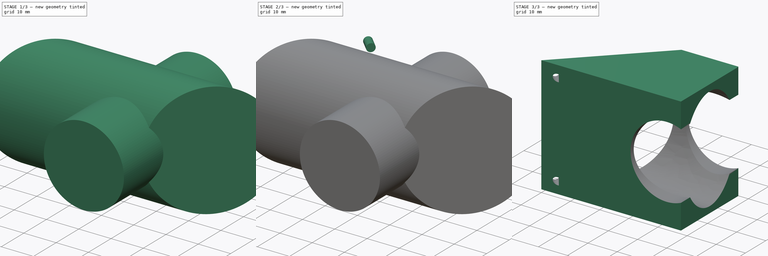
[diagram: build sequence overview — one tinted view per stage of 3, left to right]
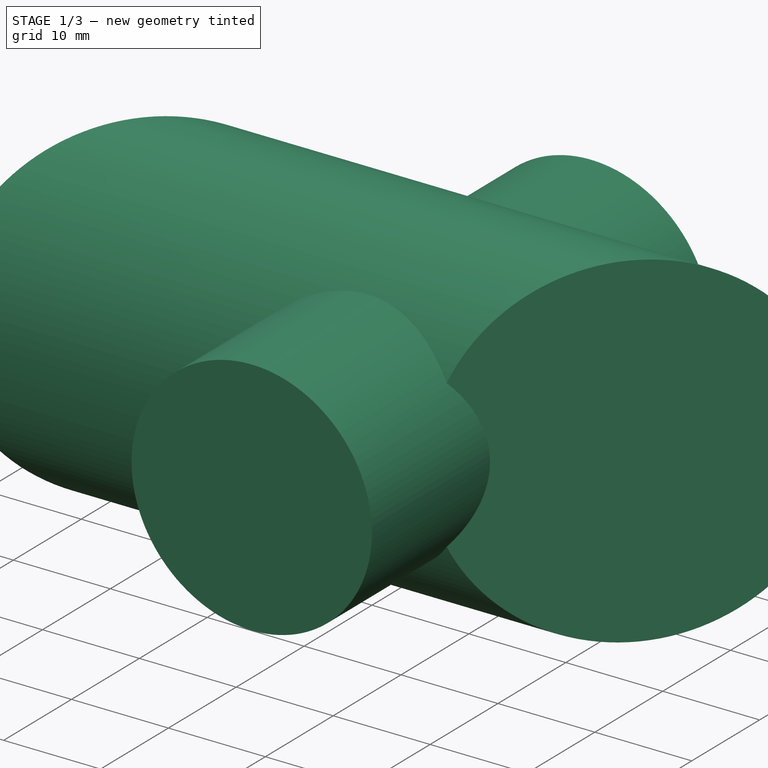
[diagram: stage 1 of 3 — iso view after this stage's code; geometry added in this stage tinted green]
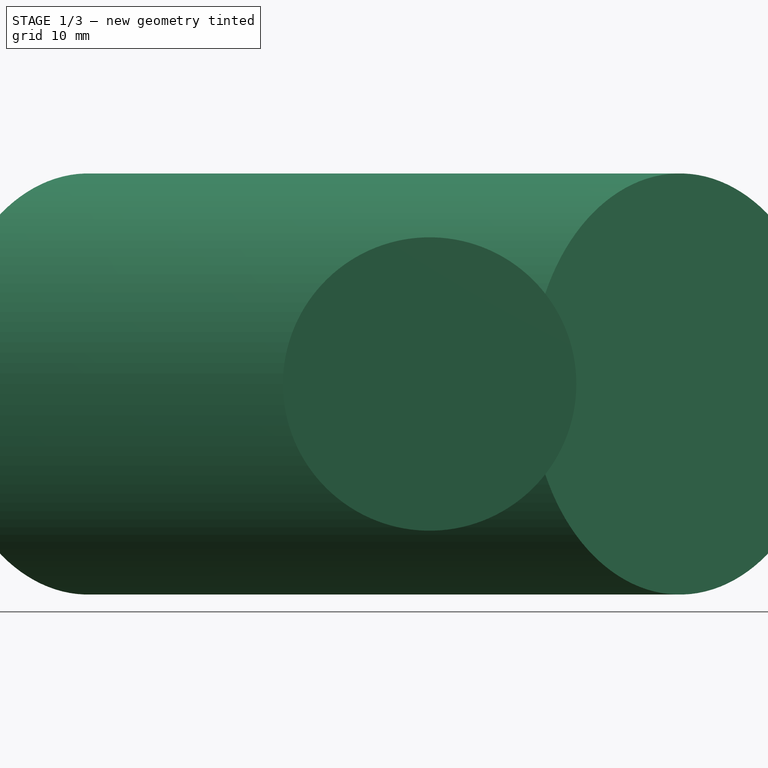
[diagram: stage 1 of 3 — front view after this stage's code; geometry added in this stage tinted green]
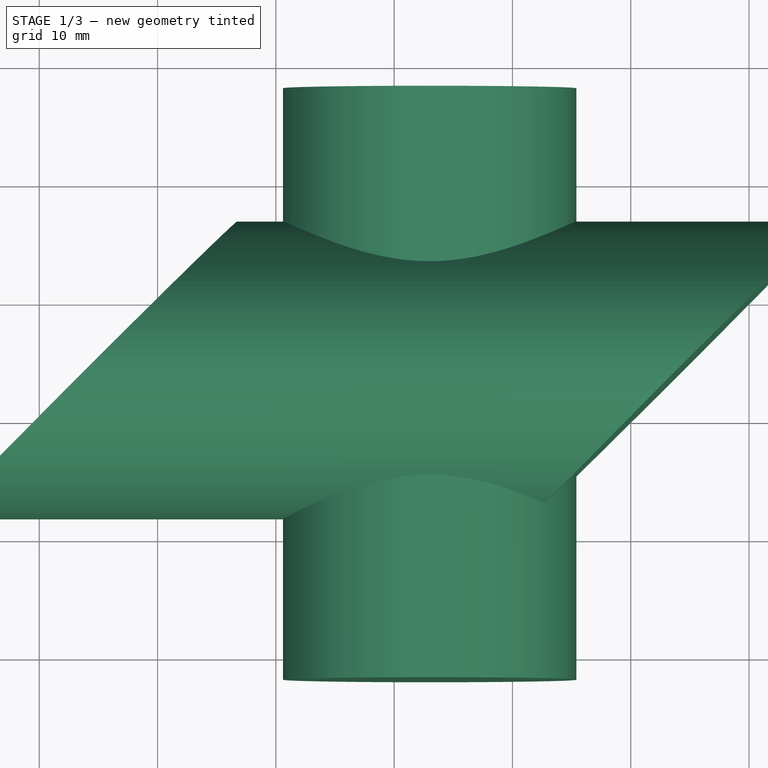
[diagram: stage 1 of 3 — top view after this stage's code; geometry added in this stage tinted green]
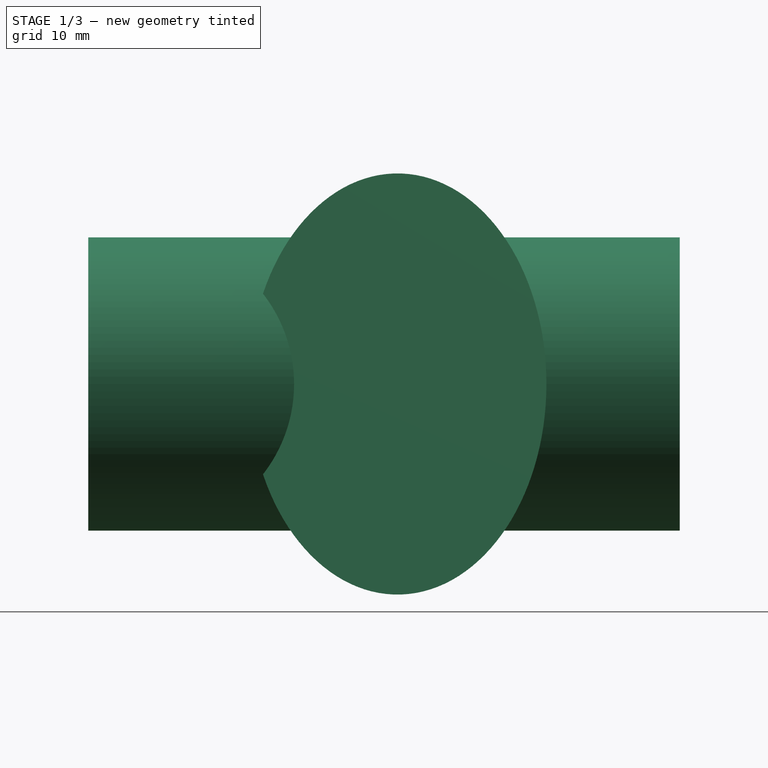
[diagram: stage 1 of 3 — right view after this stage's code; geometry added in this stage tinted green]
FCSTD DOCUMENT  (FreeCAD 0.14R3702 (Git))
Label: uchwyt-wentylator
License: CC-BY 3.0
LicenseURL: http://creativecommons.org/licenses/by/3.0/
objects: Part::Extrusion×4, Part::Cut×3, Sketcher::SketchObject×2, Part::Feature×1, Part::Cylinder×1
note: 11 computed .brp shape members not serialized (recipe doc carries the construction recipe); baked Part::Feature solids carry a one-line shape summary decoded from their .brp

FEATURE [Part::Extrusion] Extrude
  Base = -> Wire
  Dir = (0,0,40)
  Solid = true
FEATURE [Sketcher::SketchObject] Sketch
  Placement = pos=(0,0,0) rot=(-0.281085,0.678598,0.678598;3.68962rad)
  Support = -> Extrude [Face3]
  sketch-geometry (1):
    g0: Circle CenterX=-20 CenterY=20 CenterZ=0 NormalX=0 NormalY=0 NormalZ=1 Radius=17.8
  constraints (3):
    c: DistanceX(g-1,g0) = -20
    c: DistanceY(g-1,g0) = 20
    c: Radius(g0) = 17.8
FEATURE [Part::Extrusion] Extrude003
  Base = -> Sketch
  Dir = (50,0,0)
  Solid = true
FEATURE [Part::Cylinder] Cylinder
  Angle = 360
  Height = 50
  Placement = pos=(43,38,20) rot=(1,0,0;1.5708rad)
  Radius = 12.4
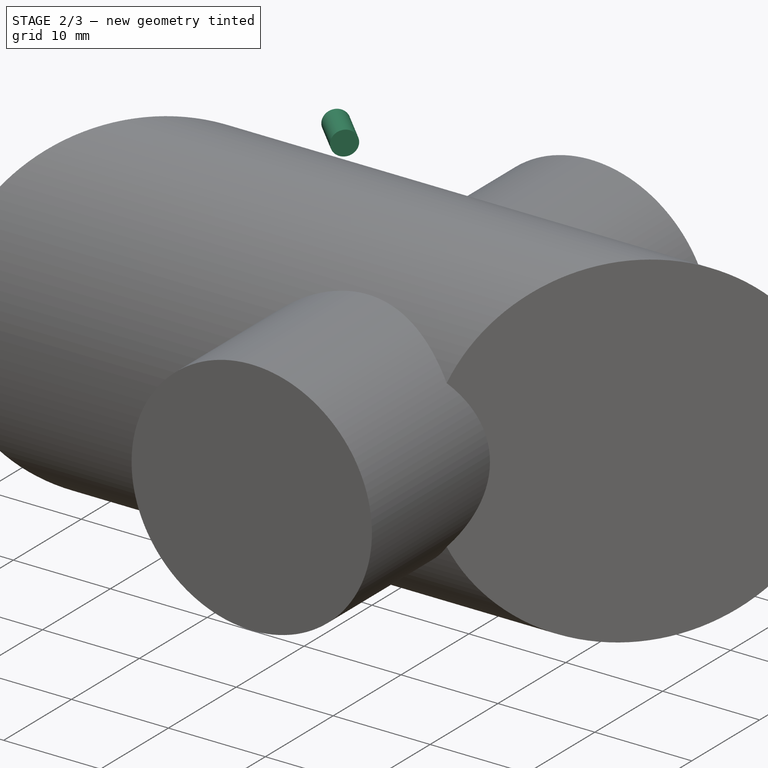
[diagram: stage 2 of 3 — iso view after this stage's code; geometry added in this stage tinted green]
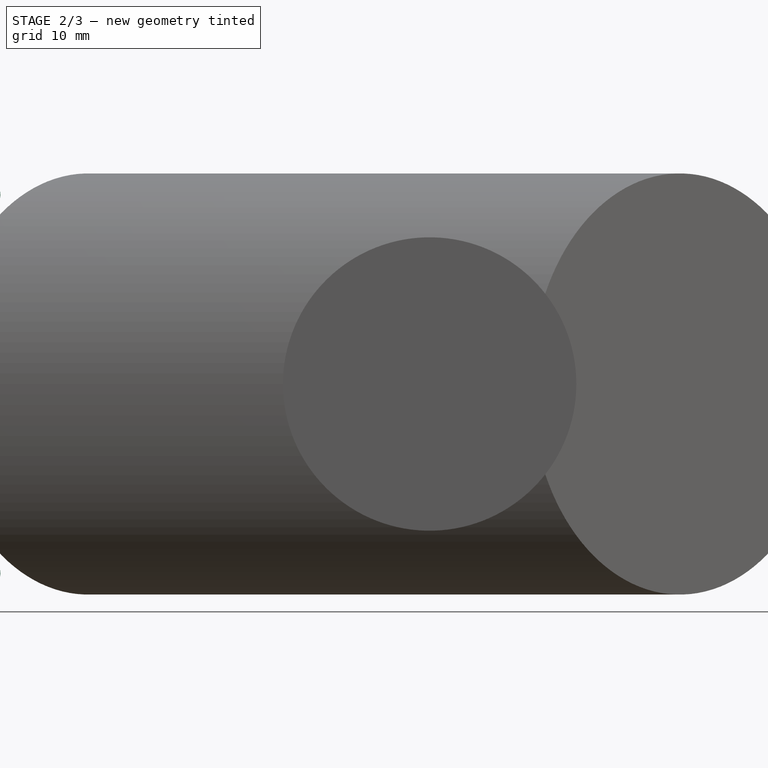
[diagram: stage 2 of 3 — front view after this stage's code; geometry added in this stage tinted green]
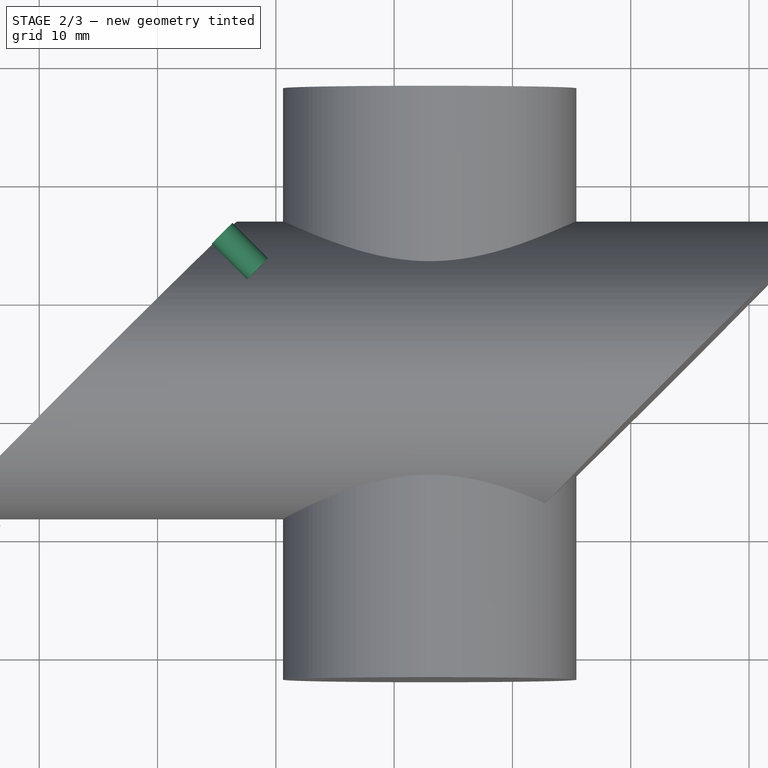
[diagram: stage 2 of 3 — top view after this stage's code; geometry added in this stage tinted green]
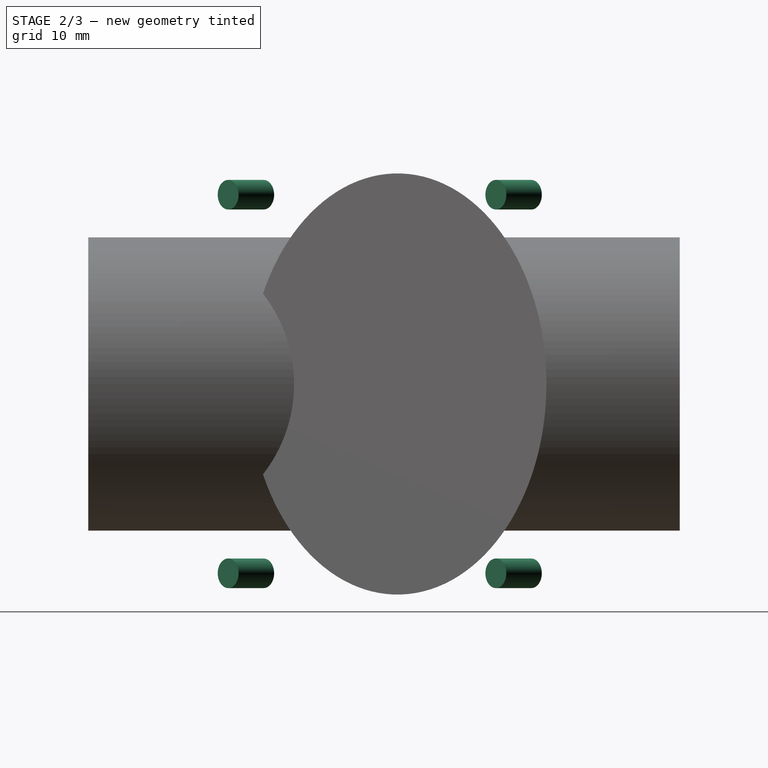
[diagram: stage 2 of 3 — right view after this stage's code; geometry added in this stage tinted green]
FEATURE [Part::Feature] Wire
  shape: bbox 47.89 x 28.28 x 2e-07 mm, 0 faces, 0 solids (baked)
FEATURE [Part::Extrusion] Extrude001
  Base = -> Wire
  Dir = (0,0,40)
  Solid = true
FEATURE [Sketcher::SketchObject] Sketch001
  Placement = pos=(0,0,0) rot=(-0.281085,0.678598,0.678598;3.68962rad)
  Support = -> Extrude001 [Face3]
  sketch-geometry (4):
    g0: Circle CenterX=-36 CenterY=36 CenterZ=0 NormalX=0 NormalY=0 NormalZ=1 Radius=1.25
    g1: Circle CenterX=-4 CenterY=36 CenterZ=0 NormalX=0 NormalY=0 NormalZ=1 Radius=1.25
    g2: Circle CenterX=-4 CenterY=4 CenterZ=0 NormalX=0 NormalY=0 NormalZ=1 Radius=1.25
    g3: Circle CenterX=-36 CenterY=4 CenterZ=0 NormalX=0 NormalY=0 NormalZ=1 Radius=1.25
  constraints (12):
    c: Radius(g0) = 1.25
    c: DistanceY(g0) = 36
    c: DistanceX(g-1,g0) = -36
    c: DistanceX(g0,g1) = 32
    c: DistanceY(g-1,g1) = 36
    c: Radius(g1) = 1.25
    c: DistanceX(g-1,g2) = -4
    c: Radius(g2) = 1.25
    c: DistanceY(g-1,g2) = 4
    c: Radius(g3) = 1.25
    c: DistanceX(g3) = -36
    c: DistanceY(g-1,g3) = 4
FEATURE [Part::Extrusion] Extrude002
  Base = -> Sketch001
  Dir = (3,-3,0)
  Solid = true
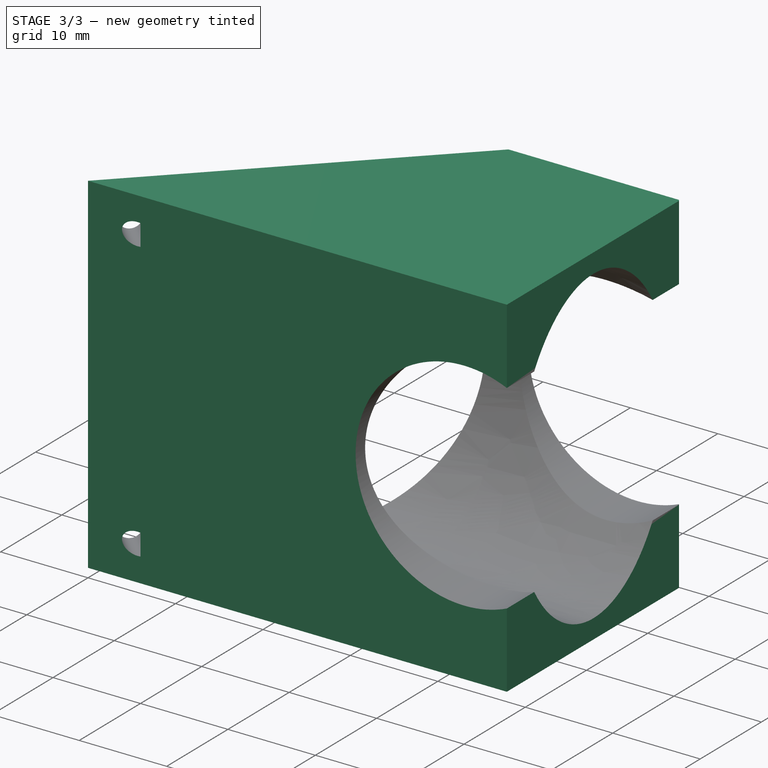
[diagram: stage 3 of 3 — iso view after this stage's code; geometry added in this stage tinted green]
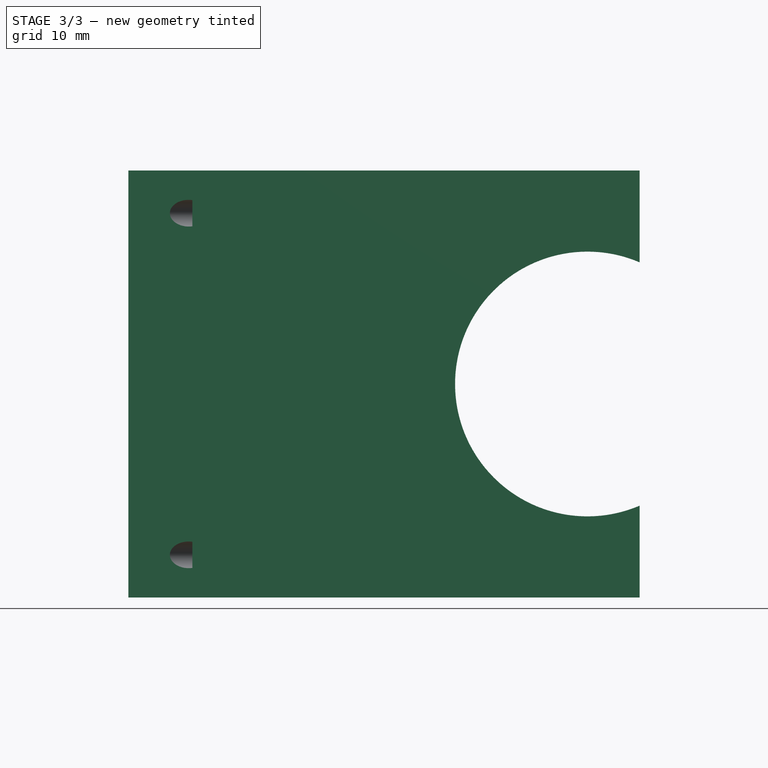
[diagram: stage 3 of 3 — front view after this stage's code; geometry added in this stage tinted green]
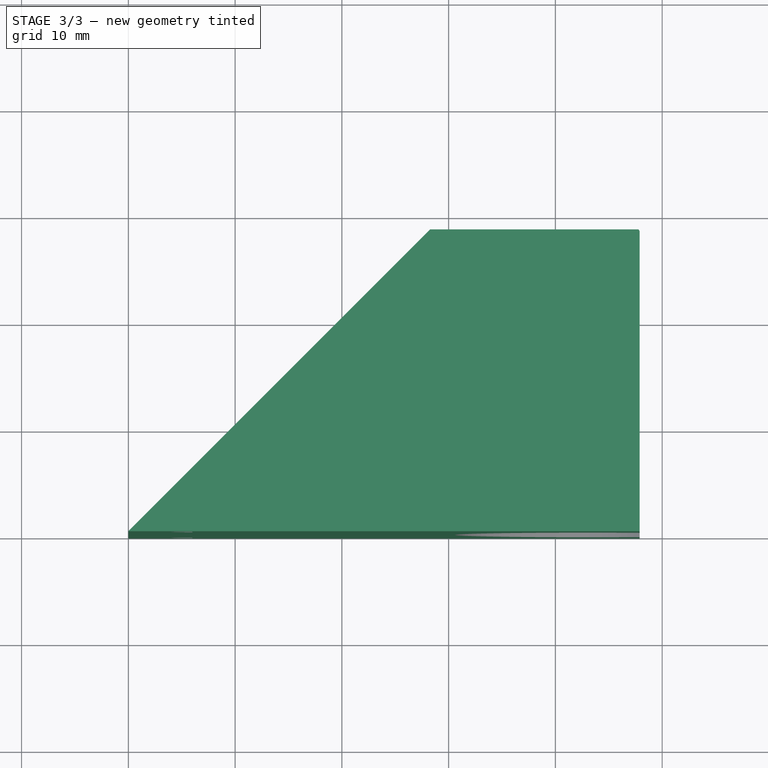
[diagram: stage 3 of 3 — top view after this stage's code; geometry added in this stage tinted green]
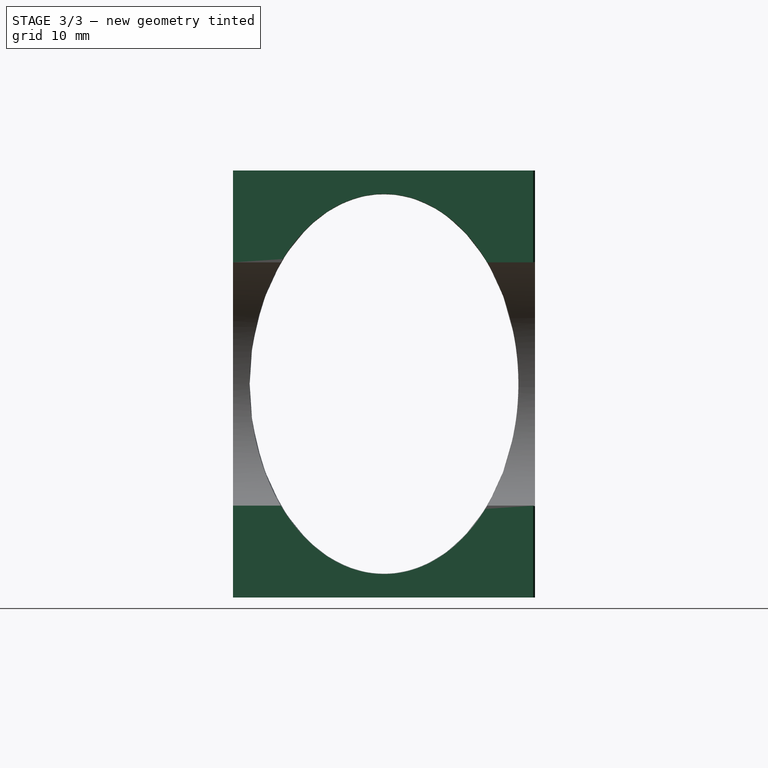
[diagram: stage 3 of 3 — right view after this stage's code; geometry added in this stage tinted green]
FEATURE [Part::Cut] Cut
  Base = -> Extrude001
  Tool = -> Extrude002
FEATURE [Part::Cut] Cut001
  Base = -> Cut
  Tool = -> Extrude003
FEATURE [Part::Cut] Cut002
  Base = -> Cut001
  Tool = -> Cylinder
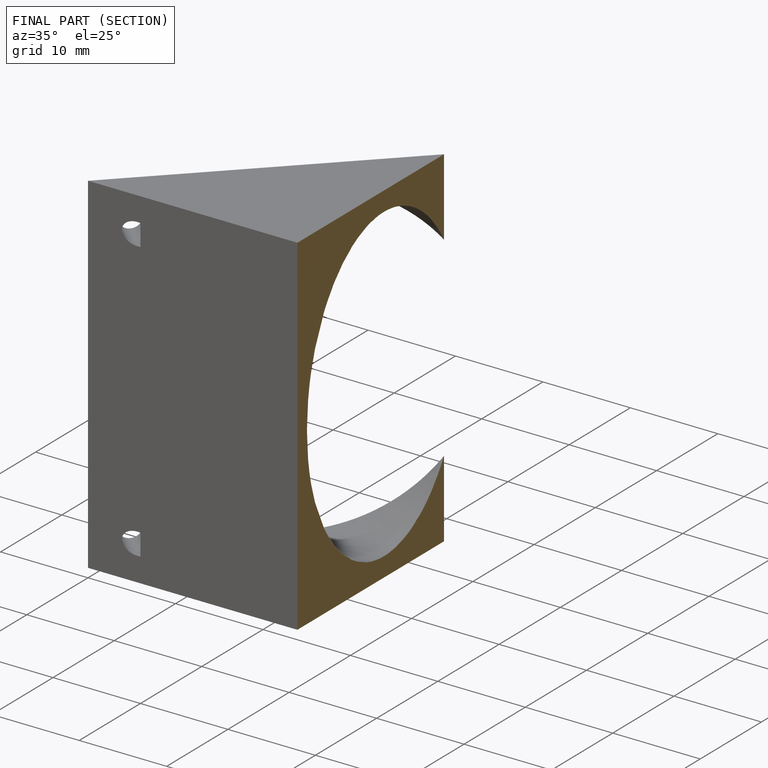
[diagram: finished part — half-section view (interior)]
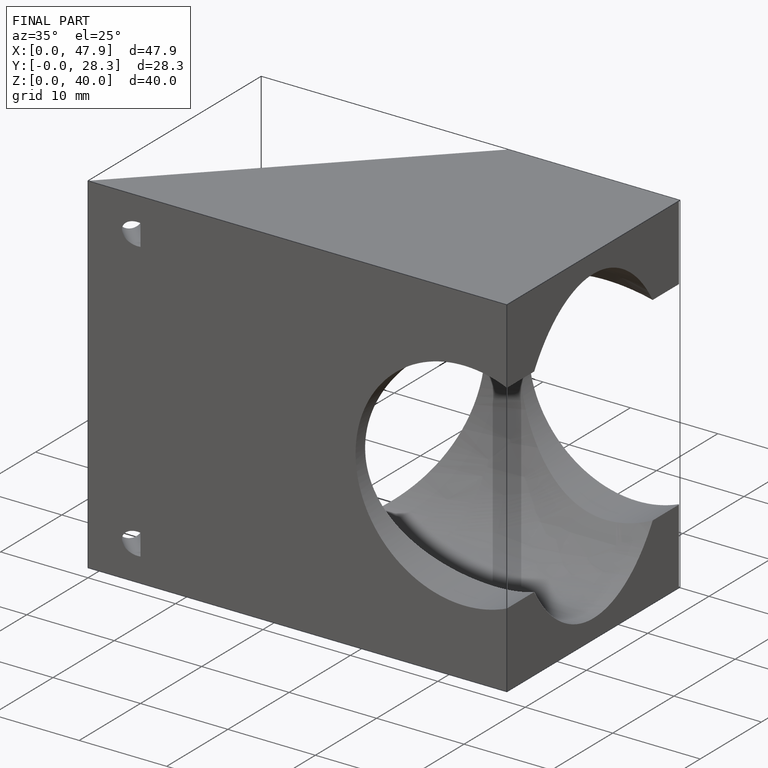
[diagram: finished part — iso view with bounding-box wireframe]
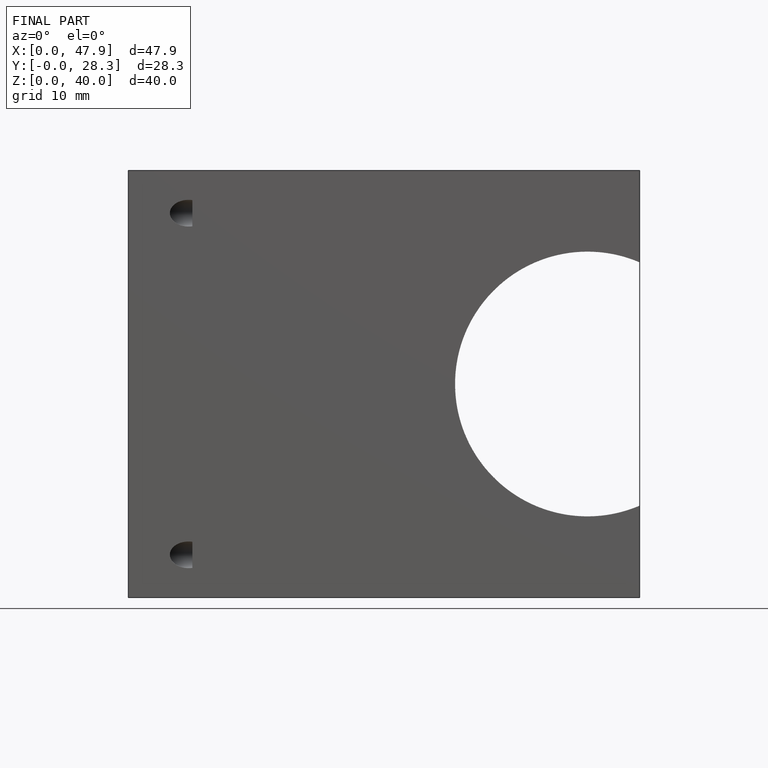
[diagram: finished part — front view with bounding-box wireframe]
